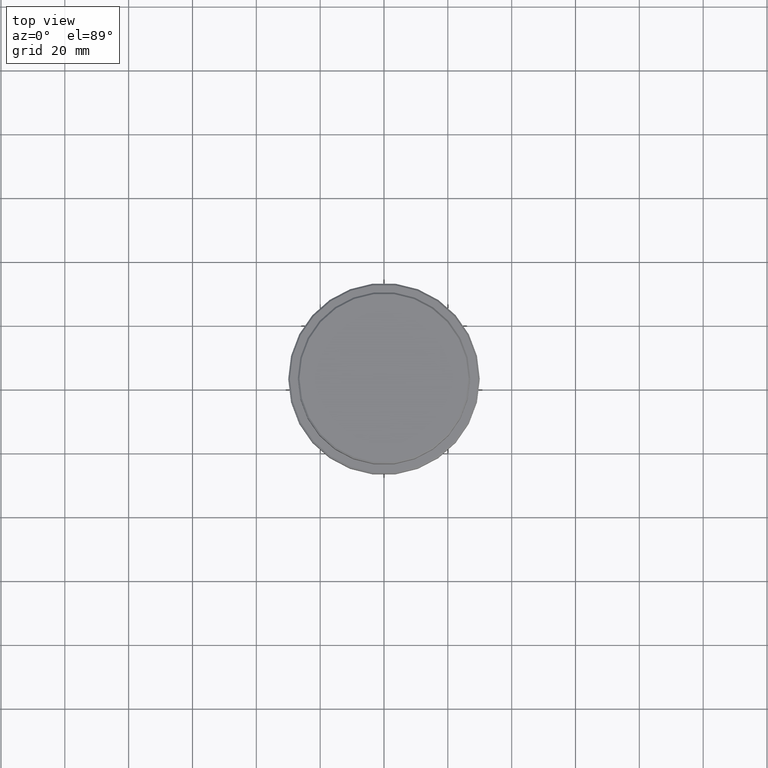
[diagram: clean part render]
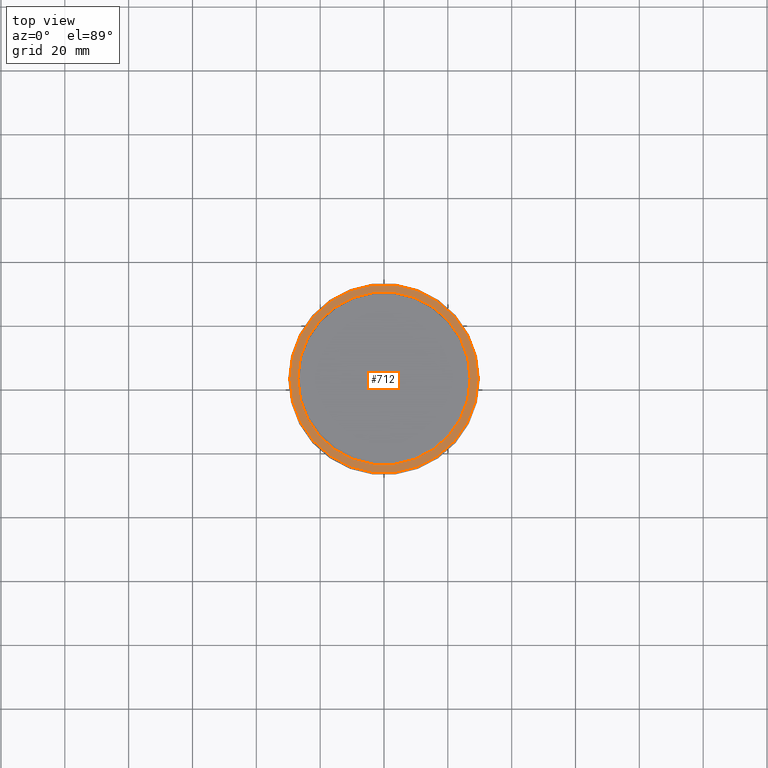
[diagram: same view with one face highlighted and labeled with its STEP entity id]
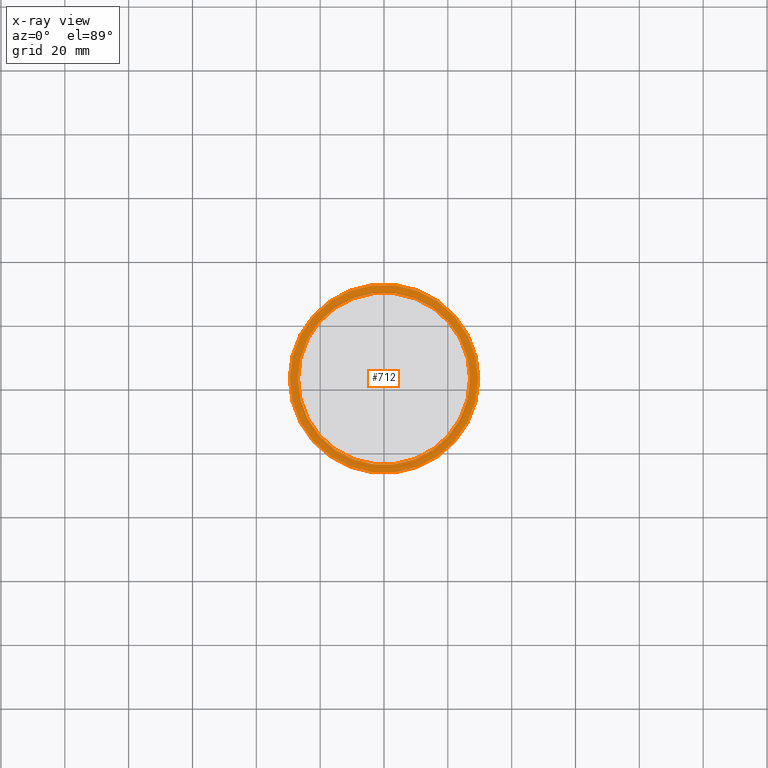
[diagram: x-ray of the same camera — body ghosted, the highlighted face saturated]
A machine part, top view. The second image highlights one B-rep face of the part: STEP entity #712.
The next image is the same camera in x-ray: the body ghosted, the highlighted face saturated — about 0% of this face is hidden behind the body in this view.
In plain terms, the highlighted planar face has unit normal (0, -0, 1).
Its self-contained STEP definition (entity closure, byte-faithful):
#47 = ORIENTED_EDGE ( 'NONE', *, *, #268, .T. ) ;
#53 = DIRECTION ( 'NONE',  ( 1.000000000000000000, 0.000000000000000000, 0.000000000000000000 ) ) ;
#73 = CARTESIAN_POINT ( 'NONE',  ( 0.000000000000000000, 0.000000000000000000, -12.00000000000000178 ) ) ;
#82 = CIRCLE ( 'NONE', #155, 29.50000000000000000 ) ;
#91 = CARTESIAN_POINT ( 'NONE',  ( 29.50000000000000000, 3.643324227463375391E-15, -12.00000000000000178 ) ) ;
#101 = AXIS2_PLACEMENT_3D ( 'NONE', #73, #752, #517 ) ;
#115 = DIRECTION ( 'NONE',  ( 0.000000000000000000, -0.000000000000000000, 1.000000000000000000 ) ) ;
#133 = CARTESIAN_POINT ( 'NONE',  ( -29.50000000000000000, 0.000000000000000000, -12.00000000000000178 ) ) ;
#155 = AXIS2_PLACEMENT_3D ( 'NONE', #858, #1376, #199 ) ;
#199 = DIRECTION ( 'NONE',  ( 1.000000000000000000, 0.000000000000000000, 0.000000000000000000 ) ) ;
#230 = AXIS2_PLACEMENT_3D ( 'NONE', #1278, #755, #318 ) ;
#239 = VERTEX_POINT ( 'NONE', #860 ) ;
#240 = DIRECTION ( 'NONE',  ( 1.000000000000000000, 0.000000000000000000, 0.000000000000000000 ) ) ;
#268 = EDGE_CURVE ( 'NONE', #319, #1401, #695, .T. ) ;
#317 = AXIS2_PLACEMENT_3D ( 'NONE', #468, #115, #240 ) ;
#318 = DIRECTION ( 'NONE',  ( 1.000000000000000000, 0.000000000000000000, 0.000000000000000000 ) ) ;
#319 = VERTEX_POINT ( 'NONE', #133 ) ;
#342 = CIRCLE ( 'NONE', #230, 26.99999999999999289 ) ;
#415 = EDGE_LOOP ( 'NONE', ( #47, #536 ) ) ;
#468 = CARTESIAN_POINT ( 'NONE',  ( 0.000000000000000000, 26.49999999999999645, -12.00000000000000178 ) ) ;
#507 = CARTESIAN_POINT ( 'NONE',  ( 0.000000000000000000, 0.000000000000000000, -12.00000000000000178 ) ) ;
#517 = DIRECTION ( 'NONE',  ( 1.000000000000000000, 0.000000000000000000, 0.000000000000000000 ) ) ;
#536 = ORIENTED_EDGE ( 'NONE', *, *, #1048, .T. ) ;
#552 = EDGE_CURVE ( 'NONE', #239, #585, #719, .T. ) ;
#585 = VERTEX_POINT ( 'NONE', #853 ) ;
#647 = EDGE_LOOP ( 'NONE', ( #779, #1055 ) ) ;
#660 = FACE_OUTER_BOUND ( 'NONE', #415, .T. ) ;
#695 = CIRCLE ( 'NONE', #966, 29.50000000000000000 ) ;
#712 = ADVANCED_FACE ( 'NONE', ( #660, #1101 ), #1086, .T. ) ;
#719 = CIRCLE ( 'NONE', #101, 26.99999999999999289 ) ;
#737 = EDGE_CURVE ( 'NONE', #585, #239, #342, .T. ) ;
#752 = DIRECTION ( 'NONE',  ( 0.000000000000000000, 0.000000000000000000, -1.000000000000000000 ) ) ;
#755 = DIRECTION ( 'NONE',  ( 0.000000000000000000, 0.000000000000000000, -1.000000000000000000 ) ) ;
#779 = ORIENTED_EDGE ( 'NONE', *, *, #552, .T. ) ;
#853 = CARTESIAN_POINT ( 'NONE',  ( -26.99999999999999289, 3.306546357697852944E-15, -12.00000000000000178 ) ) ;
#858 = CARTESIAN_POINT ( 'NONE',  ( 0.000000000000000000, 0.000000000000000000, -12.00000000000000178 ) ) ;
#860 = CARTESIAN_POINT ( 'NONE',  ( 26.99999999999999289, 0.000000000000000000, -12.00000000000000178 ) ) ;
#966 = AXIS2_PLACEMENT_3D ( 'NONE', #507, #1362, #53 ) ;
#1048 = EDGE_CURVE ( 'NONE', #1401, #319, #82, .T. ) ;
#1055 = ORIENTED_EDGE ( 'NONE', *, *, #737, .T. ) ;
#1086 = PLANE ( 'NONE',  #317 ) ;
#1101 = FACE_BOUND ( 'NONE', #647, .T. ) ;
#1278 = CARTESIAN_POINT ( 'NONE',  ( 0.000000000000000000, 0.000000000000000000, -12.00000000000000178 ) ) ;
#1362 = DIRECTION ( 'NONE',  ( -0.000000000000000000, -0.000000000000000000, 1.000000000000000000 ) ) ;
#1376 = DIRECTION ( 'NONE',  ( -0.000000000000000000, -0.000000000000000000, 1.000000000000000000 ) ) ;
#1401 = VERTEX_POINT ( 'NONE', #91 ) ;